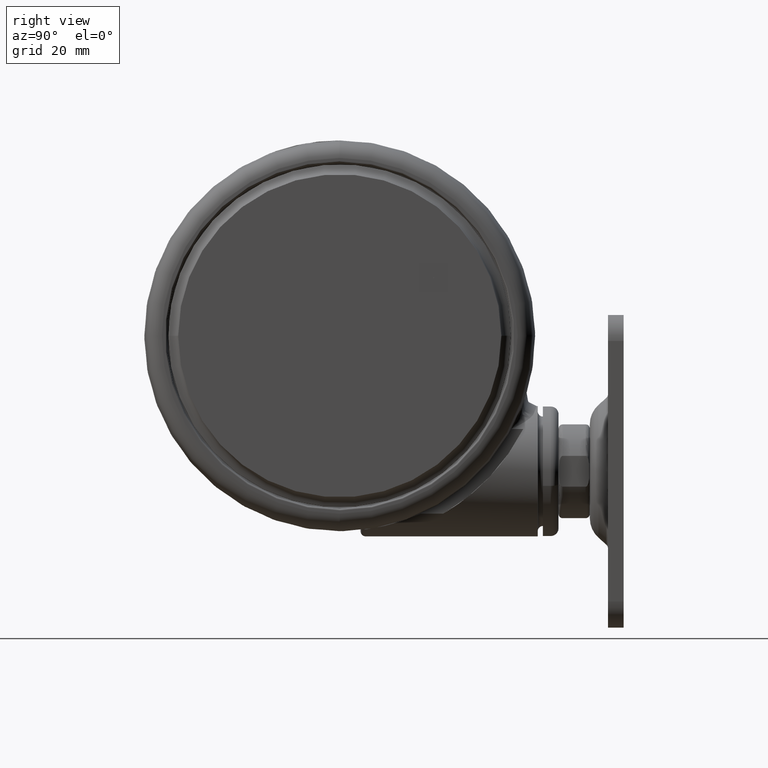
[diagram: clean part render]
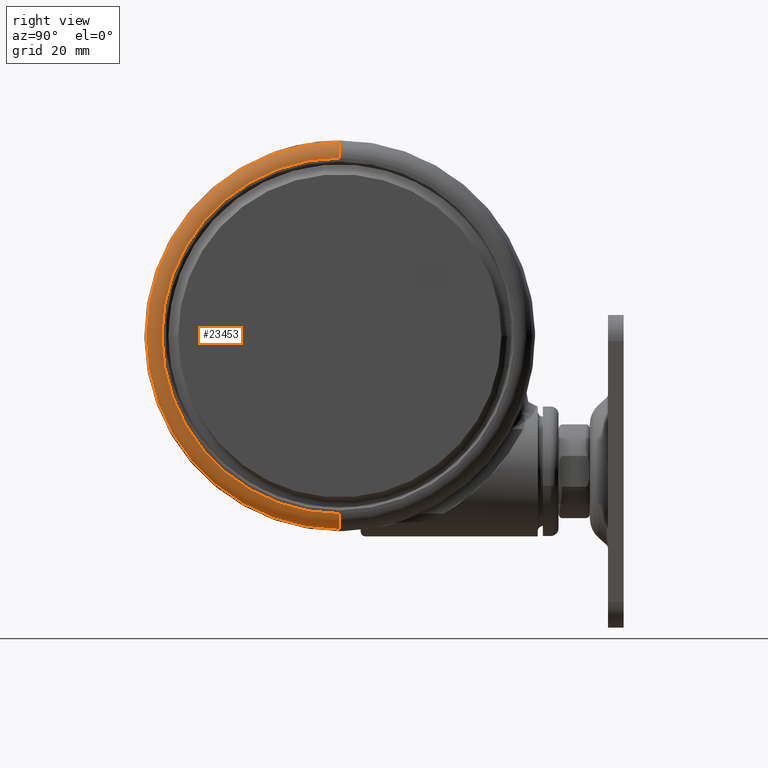
[diagram: same view with one face highlighted and labeled with its STEP entity id]
A machine part, right view. The second image highlights one B-rep face of the part: STEP entity #23453.
In plain terms, the highlighted toroidal blend (fillet) surface has major radius 34.1304 mm and minor (blend) radius 3 mm.
Its self-contained STEP definition (entity closure, byte-faithful):
#347 = CIRCLE ( 'NONE', #52431, 2.999999999999988900 ) ;
#737 = CIRCLE ( 'NONE', #6510, 2.999999999999988900 ) ;
#1158 = EDGE_CURVE ( 'NONE', #38856, #23589, #737, .T. ) ;
#3676 = VERTEX_POINT ( 'NONE', #47483 ) ;
#6510 = AXIS2_PLACEMENT_3D ( 'NONE', #19471, #51383, #24040 ) ;
#8256 = CARTESIAN_POINT ( 'NONE',  ( 0.0000000000000000000, 3.469446951953614200E-014, -4.642992131271245900 ) ) ;
#12820 = DIRECTION ( 'NONE',  ( -3.275157922644210200E-015, 1.000000000000000000, 0.0000000000000000000 ) ) ;
#17126 = EDGE_CURVE ( 'NONE', #23589, #22436, #44635, .T. ) ;
#17676 = AXIS2_PLACEMENT_3D ( 'NONE', #8256, #40141, #12820 ) ;
#19471 = CARTESIAN_POINT ( 'NONE',  ( 1.076026811762558600E-013, -34.13039991264664500, -4.800000000000056700 ) ) ;
#20786 = DIRECTION ( 'NONE',  ( 1.000000000000000000, 3.275157922644210200E-015, -0.0000000000000000000 ) ) ;
#21740 = CARTESIAN_POINT ( 'NONE',  ( 1.123252400555720600E-013, -34.13039991264664500, -1.800000000000068900 ) ) ;
#22287 = EDGE_LOOP ( 'NONE', ( #42525, #41845, #44575, #47676 ) ) ;
#22436 = VERTEX_POINT ( 'NONE', #48428 ) ;
#23453 = ADVANCED_FACE ( 'NONE', ( #30828 ), #40104, .T. ) ;
#23589 = VERTEX_POINT ( 'NONE', #21740 ) ;
#24040 = DIRECTION ( 'NONE',  ( 3.152693242729476600E-015, -1.000000000000000000, 0.0000000000000000000 ) ) ;
#26376 = CARTESIAN_POINT ( 'NONE',  ( 0.0000000000000000000, 3.469446951953614200E-014, -1.800000000000068900 ) ) ;
#29787 = CARTESIAN_POINT ( 'NONE',  ( 1.170477989348882900E-013, -37.12628851691035700, -4.642992131271245900 ) ) ;
#30828 = FACE_OUTER_BOUND ( 'NONE', #22287, .T. ) ;
#30993 = DIRECTION ( 'NONE',  ( -3.275157922644210200E-015, 1.000000000000000000, 0.0000000000000000000 ) ) ;
#33773 = DIRECTION ( 'NONE',  ( -3.275157922644210200E-015, 1.000000000000000000, 0.0000000000000000000 ) ) ;
#35871 = EDGE_CURVE ( 'NONE', #3676, #22436, #347, .T. ) ;
#36044 = EDGE_CURVE ( 'NONE', #38856, #3676, #53697, .T. ) ;
#38856 = VERTEX_POINT ( 'NONE', #29787 ) ;
#38949 = DIRECTION ( 'NONE',  ( 0.0000000000000000000, 0.0000000000000000000, 1.000000000000000000 ) ) ;
#40104 = TOROIDAL_SURFACE ( 'NONE', #40424, 34.13039991264668100, 2.999999999999988000 ) ;
#40141 = DIRECTION ( 'NONE',  ( 0.0000000000000000000, 0.0000000000000000000, 1.000000000000000000 ) ) ;
#40424 = AXIS2_PLACEMENT_3D ( 'NONE', #43541, #38949, #33773 ) ;
#41845 = ORIENTED_EDGE ( 'NONE', *, *, #36044, .T. ) ;
#42525 = ORIENTED_EDGE ( 'NONE', *, *, #1158, .F. ) ;
#43541 = CARTESIAN_POINT ( 'NONE',  ( 0.0000000000000000000, 3.469446951953614200E-014, -4.800000000000056700 ) ) ;
#44575 = ORIENTED_EDGE ( 'NONE', *, *, #35871, .T. ) ;
#44635 = CIRCLE ( 'NONE', #47345, 34.13039991264668100 ) ;
#47345 = AXIS2_PLACEMENT_3D ( 'NONE', #26376, #58258, #30993 ) ;
#47483 = CARTESIAN_POINT ( 'NONE',  ( -1.215944579745338600E-013, 37.12628851691042800, -4.642992131271245900 ) ) ;
#47676 = ORIENTED_EDGE ( 'NONE', *, *, #17126, .F. ) ;
#48100 = CARTESIAN_POINT ( 'NONE',  ( -1.117824496769200400E-013, 34.13039991264671600, -4.800000000000056700 ) ) ;
#48428 = CARTESIAN_POINT ( 'NONE',  ( -1.117824496769200400E-013, 34.13039991264671600, -1.800000000000068900 ) ) ;
#51383 = DIRECTION ( 'NONE',  ( -1.000000000000000000, -3.152693242729475100E-015, 0.0000000000000000000 ) ) ;
#52431 = AXIS2_PLACEMENT_3D ( 'NONE', #48100, #20786, #52681 ) ;
#52681 = DIRECTION ( 'NONE',  ( -3.275157922644208200E-015, 1.000000000000000000, 0.0000000000000000000 ) ) ;
#53697 = CIRCLE ( 'NONE', #17676, 37.12628851691039200 ) ;
#58258 = DIRECTION ( 'NONE',  ( 0.0000000000000000000, 0.0000000000000000000, 1.000000000000000000 ) ) ;